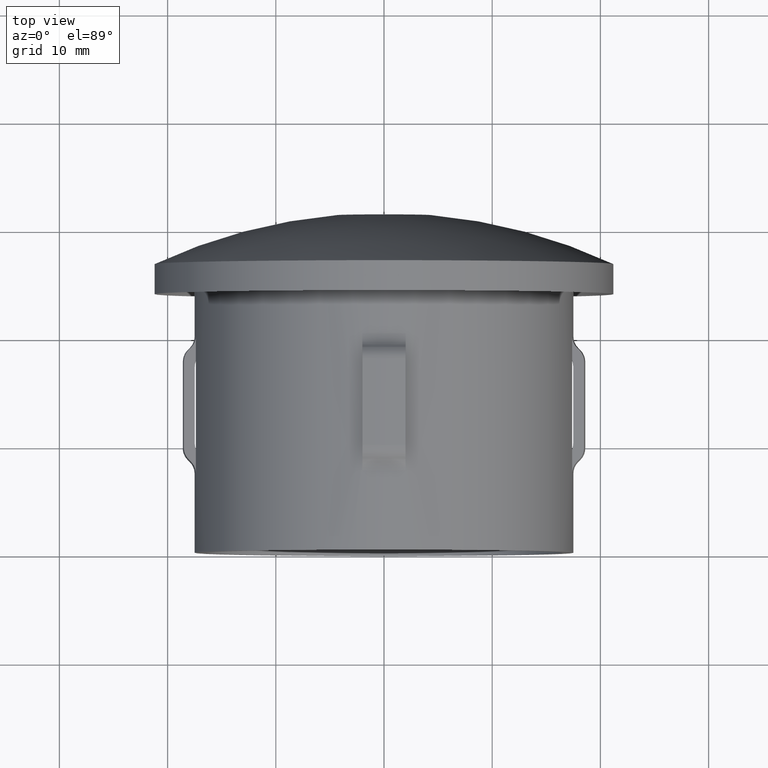
[diagram: clean part render]
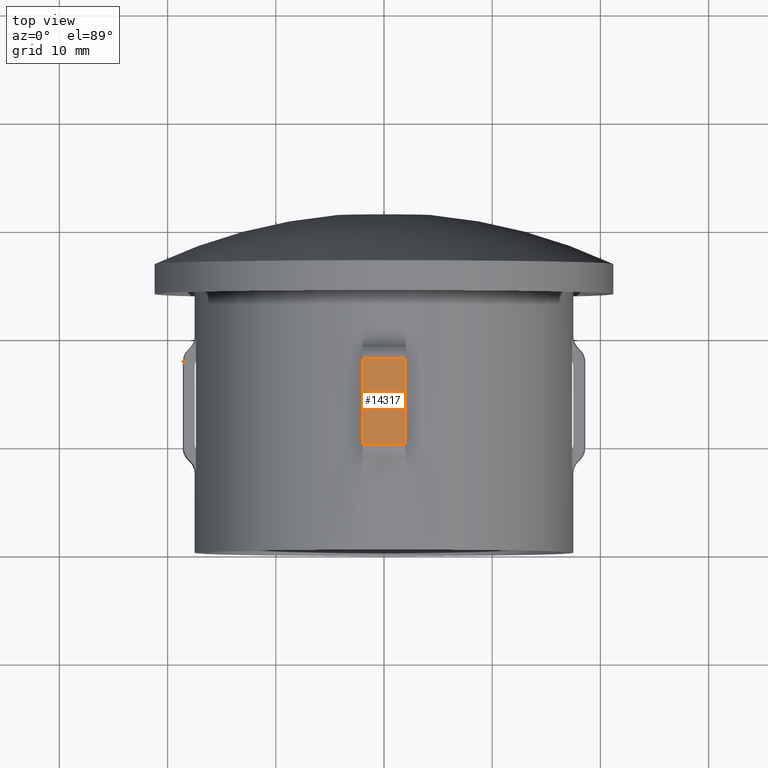
[diagram: same view with one face highlighted and labeled with its STEP entity id]
A machine part, top view. The second image highlights one B-rep face of the part: STEP entity #14317.
In plain terms, the highlighted cylindrical surface (partial cylindrical patch) has radius 18.6 mm, axis along (-0, -1, -0).
Its self-contained STEP definition (entity closure, byte-faithful):
#167 = EDGE_CURVE ( 'NONE', #12121, #3970, #11973, .T. ) ;
#2514 = CARTESIAN_POINT ( 'NONE',  ( -3.265832204538601600E-014, 17.65735931288076100, 0.0000000000000000000 ) ) ;
#2549 = ORIENTED_EDGE ( 'NONE', *, *, #13291, .T. ) ;
#3277 = EDGE_CURVE ( 'NONE', #11181, #10623, #6672, .T. ) ;
#3883 = FACE_OUTER_BOUND ( 'NONE', #12363, .T. ) ;
#3970 = VERTEX_POINT ( 'NONE', #7280 ) ;
#4135 = CARTESIAN_POINT ( 'NONE',  ( -1.999999999999997300, 20.00000000000000000, 18.49216050114219100 ) ) ;
#4447 = EDGE_CURVE ( 'NONE', #12121, #11181, #8119, .T. ) ;
#4601 = CARTESIAN_POINT ( 'NONE',  ( 0.0000000000000000000, 28.89999999999999500, 0.0000000000000000000 ) ) ;
#5373 = CARTESIAN_POINT ( 'NONE',  ( 2.000000000000002200, 17.65735931288070400, 18.49216050114217300 ) ) ;
#6254 = AXIS2_PLACEMENT_3D ( 'NONE', #4601, #7007, #14508 ) ;
#6335 = CARTESIAN_POINT ( 'NONE',  ( 2.000000000000002200, 20.00000000000000000, 18.49216050114217300 ) ) ;
#6672 = CIRCLE ( 'NONE', #14240, 18.60000000000005500 ) ;
#7007 = DIRECTION ( 'NONE',  ( -2.904862207577519400E-015, -1.000000000000000000, -0.0000000000000000000 ) ) ;
#7280 = CARTESIAN_POINT ( 'NONE',  ( -1.999999999999997300, 17.65735931288070400, 18.49216050114219100 ) ) ;
#7519 = DIRECTION ( 'NONE',  ( -2.449293598294745400E-017, -1.000000000000000000, -0.0000000000000000000 ) ) ;
#7670 = ORIENTED_EDGE ( 'NONE', *, *, #3277, .F. ) ;
#8119 = LINE ( 'NONE', #6335, #14993 ) ;
#9705 = DIRECTION ( 'NONE',  ( -2.904862207577519400E-015, -1.000000000000000000, -0.0000000000000000000 ) ) ;
#10163 = ORIENTED_EDGE ( 'NONE', *, *, #167, .T. ) ;
#10623 = VERTEX_POINT ( 'NONE', #10674 ) ;
#10674 = CARTESIAN_POINT ( 'NONE',  ( -1.999999999999997800, 9.657359312880759100, 18.49216050114219100 ) ) ;
#11181 = VERTEX_POINT ( 'NONE', #16138 ) ;
#11210 = CARTESIAN_POINT ( 'NONE',  ( -5.589721970600615900E-014, 9.657359312880768000, 0.0000000000000000000 ) ) ;
#11483 = ORIENTED_EDGE ( 'NONE', *, *, #4447, .F. ) ;
#11764 = DIRECTION ( 'NONE',  ( -2.449293598294745400E-017, -1.000000000000000000, -0.0000000000000000000 ) ) ;
#11973 = CIRCLE ( 'NONE', #13878, 18.60000000000003000 ) ;
#12121 = VERTEX_POINT ( 'NONE', #5373 ) ;
#12158 = VECTOR ( 'NONE', #11764, 1000.000000000000000 ) ;
#12363 = EDGE_LOOP ( 'NONE', ( #10163, #2549, #7670, #11483 ) ) ;
#12456 = DIRECTION ( 'NONE',  ( -2.904862207577519400E-015, -1.000000000000000000, -0.0000000000000000000 ) ) ;
#12546 = LINE ( 'NONE', #4135, #12158 ) ;
#13291 = EDGE_CURVE ( 'NONE', #3970, #10623, #12546, .T. ) ;
#13333 = DIRECTION ( 'NONE',  ( 1.000000000000000000, -2.984470496304179600E-015, 0.0000000000000000000 ) ) ;
#13495 = CYLINDRICAL_SURFACE ( 'NONE', #6254, 18.60000000000004100 ) ;
#13878 = AXIS2_PLACEMENT_3D ( 'NONE', #2514, #9705, #13333 ) ;
#14240 = AXIS2_PLACEMENT_3D ( 'NONE', #11210, #12456, #14977 ) ;
#14317 = ADVANCED_FACE ( 'NONE', ( #3883 ), #13495, .T. ) ;
#14508 = DIRECTION ( 'NONE',  ( 1.000000000000000000, -2.984470496304177700E-015, 0.0000000000000000000 ) ) ;
#14977 = DIRECTION ( 'NONE',  ( 1.000000000000000000, -2.891205793294669900E-015, 0.0000000000000000000 ) ) ;
#14993 = VECTOR ( 'NONE', #7519, 1000.000000000000000 ) ;
#16138 = CARTESIAN_POINT ( 'NONE',  ( 2.000000000000001800, 9.657359312880759100, 18.49216050114217300 ) ) ;